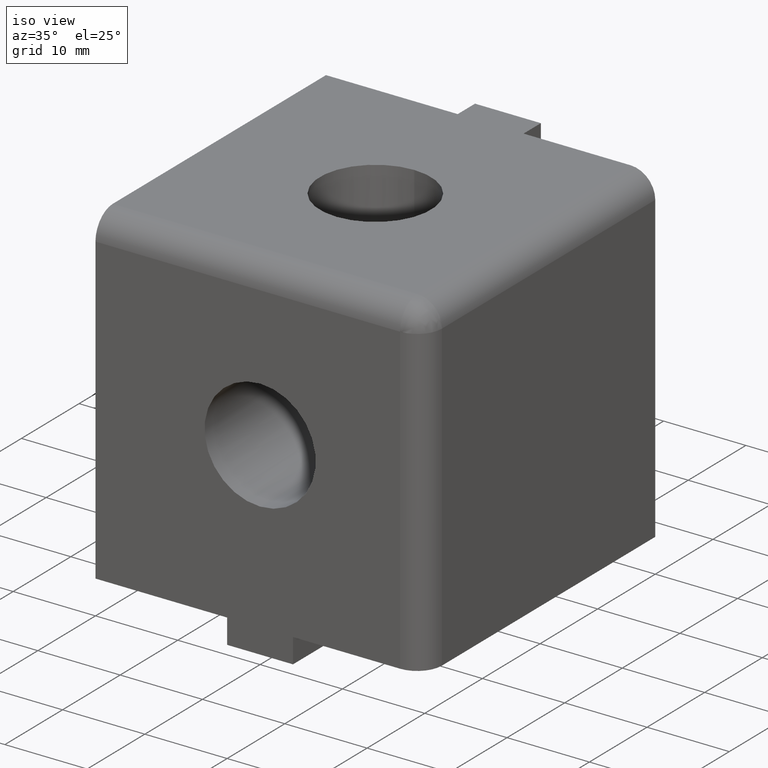
[diagram: clean part render]
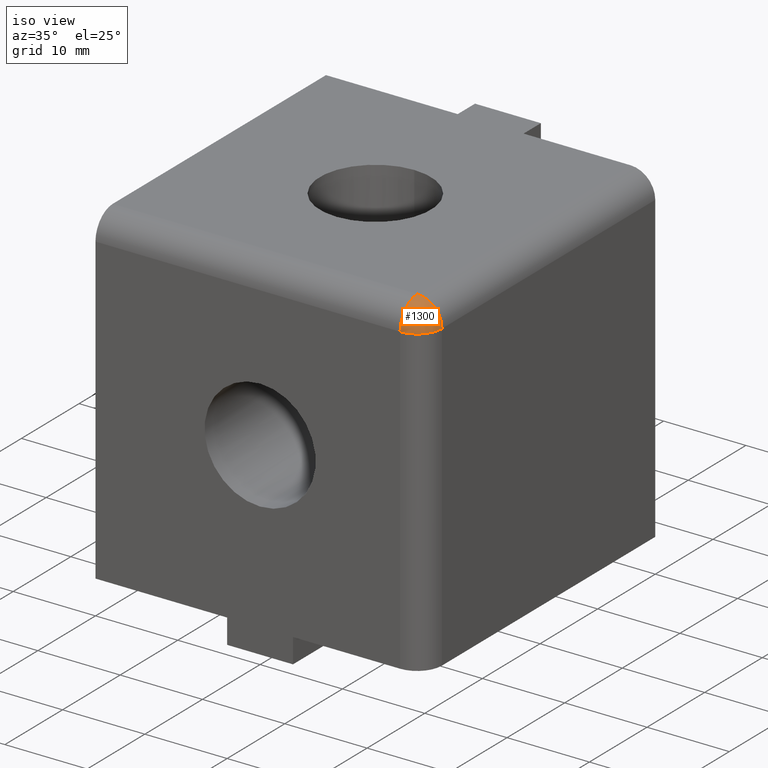
[diagram: same view with one face highlighted and labeled with its STEP entity id]
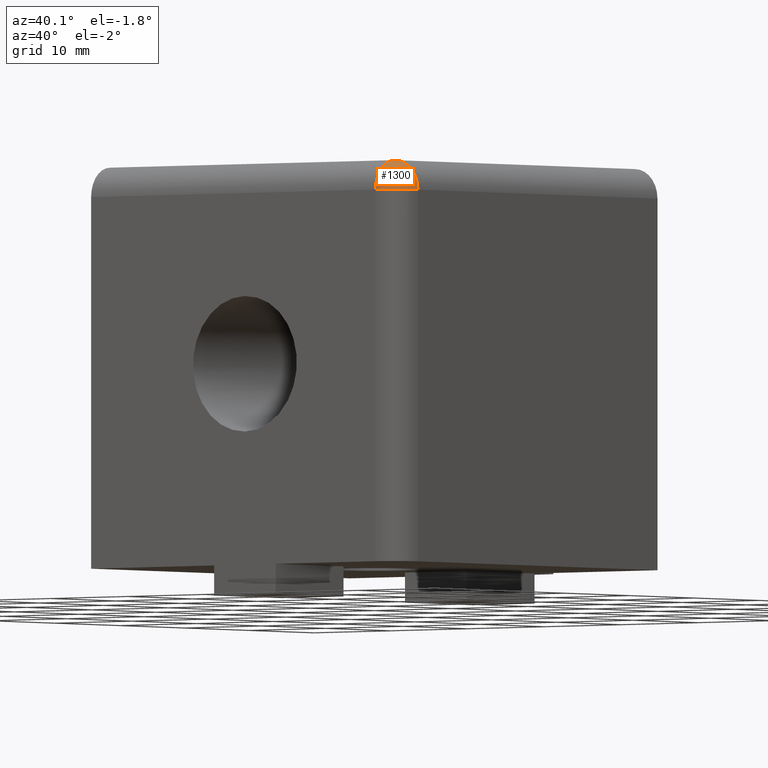
[diagram: same view with one face highlighted and labeled with its STEP entity id]
A machine part, iso view. The second image highlights one B-rep face of the part: STEP entity #1300.
A second angle (auxiliary view) of the same face is appended — the face is thin or edge-on in the first view.
In plain terms, the highlighted face is a freeform B-spline surface patch.
Its self-contained STEP definition (entity closure, byte-faithful):
#680=CARTESIAN_POINT('',(17.000000000000007,-40.0,17.0));
#681=VERTEX_POINT('',#680);
#738=CARTESIAN_POINT('',(20.000000000000004,-37.000000000000007,17.0));
#739=VERTEX_POINT('',#738);
#761=CARTESIAN_POINT('',(17.0,-37.000000000000007,20.0));
#762=VERTEX_POINT('',#761);
#1237=CARTESIAN_POINT('',(17.0,-37.000000000000007,17.0));
#1238=DIRECTION('',(0.0,0.0,1.0));
#1239=DIRECTION('',(1.0,0.0,0.0));
#1240=AXIS2_PLACEMENT_3D('',#1237,#1238,#1239);
#1241=CIRCLE('',#1240,2.999999999999999);
#1242=EDGE_CURVE('',#681,#739,#1241,.T.);
#1255=CARTESIAN_POINT('',(17.0,-37.000000000000007,17.0));
#1256=DIRECTION('',(1.0,0.0,0.0));
#1257=DIRECTION('',(0.0,0.0,-1.0));
#1258=AXIS2_PLACEMENT_3D('',#1255,#1256,#1257);
#1259=CIRCLE('',#1258,3.000000000000002);
#1260=EDGE_CURVE('',#762,#681,#1259,.T.);
#1266=CARTESIAN_POINT('',(17.000000000000011,-40.0,16.999999915147182));
#1267=CARTESIAN_POINT('',(16.999999964852822,-40.000000000000007,16.999999915147182));
#1268=CARTESIAN_POINT('',(16.999999940000006,-40.000000000000007,16.999999939999999));
#1269=CARTESIAN_POINT('',(16.999999915147189,-40.0,16.999999964852812));
#1270=CARTESIAN_POINT('',(16.999999915147193,-40.0,17.000000000000004));
#1271=CARTESIAN_POINT('',(16.999999801176997,-40.000000084852815,19.999999999999993));
#1272=CARTESIAN_POINT('',(18.242640604764102,-40.000000084852807,20.000000082355189));
#1273=CARTESIAN_POINT('',(19.121320343559645,-40.000000084852822,19.121320343559645));
#1274=CARTESIAN_POINT('',(20.000000082354990,-40.000000084852822,18.242640604764308));
#1275=CARTESIAN_POINT('',(20.000000000000004,-40.000000084852822,16.999999801177488));
#1276=CARTESIAN_POINT('',(16.999999801176997,-36.999999915147193,19.999999999999996));
#1277=CARTESIAN_POINT('',(18.242640604764105,-36.999999915147185,20.000000082355186));
#1278=CARTESIAN_POINT('',(19.121320343559645,-36.999999915147178,19.121320343559642));
#1279=CARTESIAN_POINT('',(20.000000082354987,-36.999999915147185,18.242640604764304));
#1280=CARTESIAN_POINT('',(20.000000000000004,-36.999999915147207,16.999999801177491));
#1288=(BOUNDED_SURFACE()B_SPLINE_SURFACE(2,2,((#1266,#1271,#1276),(#1267,#1272,#1277),(#1268,#1273,#1278),(#1269,#1274,#1279),(#1270,#1275,#1280)),.UNSPECIFIED.,.F.,.F.,.U.)B_SPLINE_SURFACE_WITH_KNOTS((3,2,3),(3,3),(0.374999989999975,0.500000000000000,0.625000010000000),(-1.000000E-008,0.500000010000000),.UNSPECIFIED.)GEOMETRIC_REPRESENTATION_ITEM()RATIONAL_B_SPLINE_SURFACE(((0.853553400593275,0.603553385593275,0.853553380593274),(0.853553388877516,0.603553377308982,0.853553368877516),(1.000000011715729,0.707106775328683,0.999999988284271),(0.853553388877545,0.603553377309002,0.853553368877545),(0.853553400593275,0.603553385593275,0.853553380593274)))REPRESENTATION_ITEM('')SURFACE());
#1289=ORIENTED_EDGE('',*,*,#1242,.T.);
#1290=CARTESIAN_POINT('',(17.0,-37.000000000000007,17.0));
#1291=DIRECTION('',(0.0,1.0,0.0));
#1292=DIRECTION('',(0.0,0.0,-1.0));
#1293=AXIS2_PLACEMENT_3D('',#1290,#1291,#1292);
#1294=CIRCLE('',#1293,3.000000000000002);
#1295=EDGE_CURVE('',#762,#739,#1294,.T.);
#1296=ORIENTED_EDGE('',*,*,#1295,.F.);
#1297=ORIENTED_EDGE('',*,*,#1260,.T.);
#1298=EDGE_LOOP('',(#1289,#1296,#1297));
#1299=FACE_OUTER_BOUND('',#1298,.T.);
#1300=ADVANCED_FACE('',(#1299),#1288,.T.);